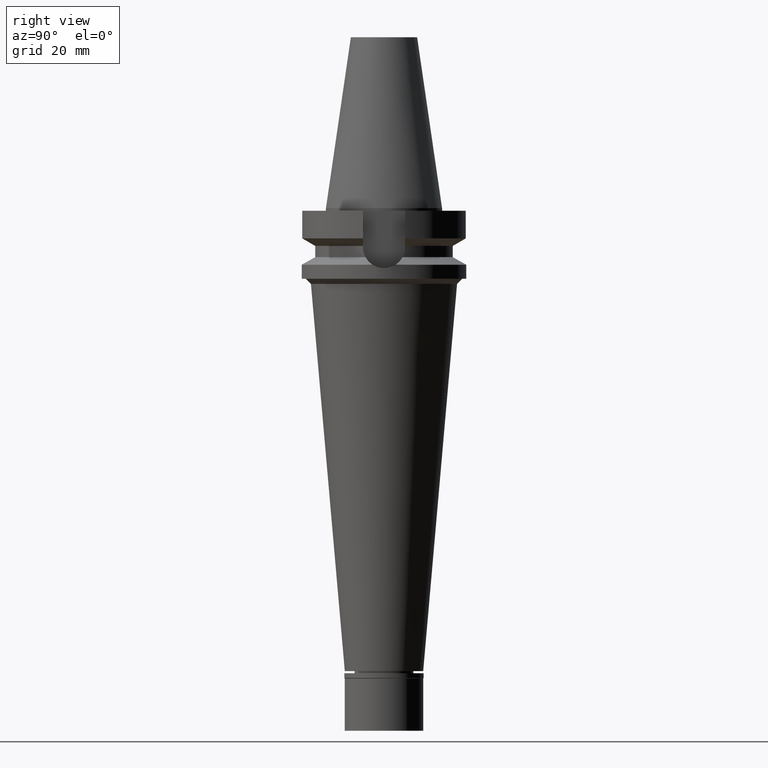
[diagram: clean part render]
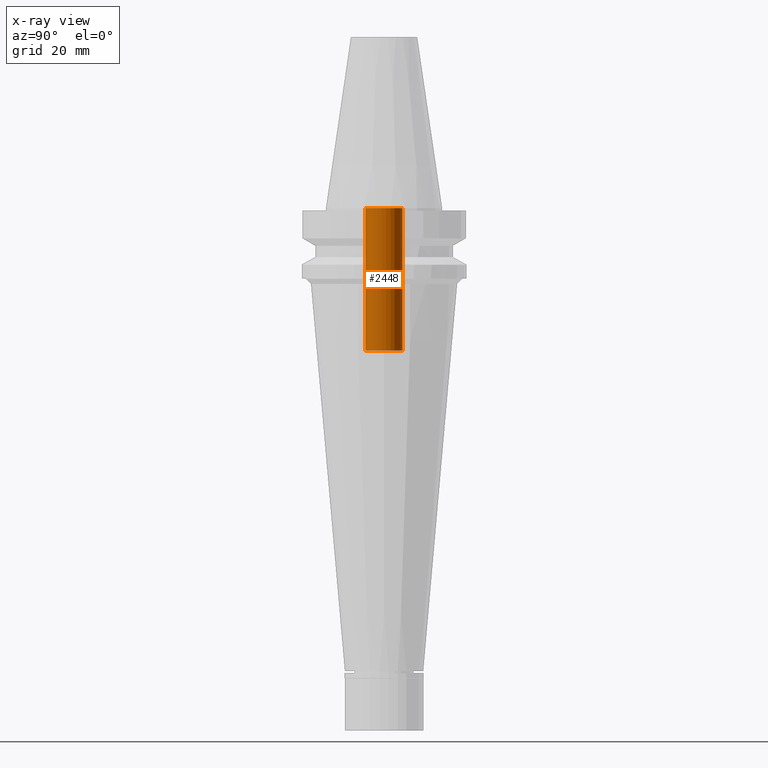
[diagram: x-ray — body ghosted, one internal face saturated and labeled with its STEP entity id]
A machine part, right view, then the same camera in x-ray: the body is ghosted and one INTERNAL B-rep face — a face not visible from any outside direction — is saturated and labeled: STEP entity #2448.
In plain terms, the highlighted cylindrical surface (edge-blend (fillet) strip) has radius 7.1 mm, axis along (0, 0, -1).
Its self-contained STEP definition (entity closure, byte-faithful):
#251 = CARTESIAN_POINT ( 'NONE',  ( 0.0000000000000000000, 7.100000000000000533, -54.60000000000000142 ) ) ;
#289 = EDGE_CURVE ( 'NONE', #820, #2198, #2969, .T. ) ;
#572 = FACE_OUTER_BOUND ( 'NONE', #1499, .T. ) ;
#628 = VERTEX_POINT ( 'NONE', #251 ) ;
#756 = LINE ( 'NONE', #1937, #1409 ) ;
#770 = DIRECTION ( 'NONE',  ( 0.0000000000000000000, 0.0000000000000000000, 1.000000000000000000 ) ) ;
#820 = VERTEX_POINT ( 'NONE', #2954 ) ;
#824 = DIRECTION ( 'NONE',  ( 0.0000000000000000000, -1.000000000000000000, 0.0000000000000000000 ) ) ;
#829 = EDGE_CURVE ( 'NONE', #2000, #820, #1750, .T. ) ;
#1198 = EDGE_CURVE ( 'NONE', #628, #2198, #756, .T. ) ;
#1311 = DIRECTION ( 'NONE',  ( 0.0000000000000000000, 0.0000000000000000000, 1.000000000000000000 ) ) ;
#1331 = ORIENTED_EDGE ( 'NONE', *, *, #289, .T. ) ;
#1409 = VECTOR ( 'NONE', #770, 1000.000000000000000 ) ;
#1490 = CARTESIAN_POINT ( 'NONE',  ( 0.0000000000000000000, -7.100000000000000533, -54.60000000000000142 ) ) ;
#1499 = EDGE_LOOP ( 'NONE', ( #1531, #2203, #1331, #2416 ) ) ;
#1531 = ORIENTED_EDGE ( 'NONE', *, *, #1943, .T. ) ;
#1609 = DIRECTION ( 'NONE',  ( 0.0000000000000000000, 1.000000000000000000, 0.0000000000000000000 ) ) ;
#1750 = LINE ( 'NONE', #1490, #2122 ) ;
#1801 = DIRECTION ( 'NONE',  ( 0.0000000000000000000, 0.0000000000000000000, -1.000000000000000000 ) ) ;
#1813 = AXIS2_PLACEMENT_3D ( 'NONE', #2526, #2247, #3010 ) ;
#1817 = CYLINDRICAL_SURFACE ( 'NONE', #2358, 7.100000000000000533 ) ;
#1882 = CARTESIAN_POINT ( 'NONE',  ( 0.0000000000000000000, 7.100000000000000533, -2.842170943039999687E-14 ) ) ;
#1937 = CARTESIAN_POINT ( 'NONE',  ( 0.0000000000000000000, 7.100000000000000533, -54.60000000000000142 ) ) ;
#1943 = EDGE_CURVE ( 'NONE', #628, #2000, #1960, .T. ) ;
#1960 = CIRCLE ( 'NONE', #2776, 7.100000000000000533 ) ;
#2000 = VERTEX_POINT ( 'NONE', #3068 ) ;
#2122 = VECTOR ( 'NONE', #1311, 1000.000000000000000 ) ;
#2198 = VERTEX_POINT ( 'NONE', #1882 ) ;
#2203 = ORIENTED_EDGE ( 'NONE', *, *, #829, .T. ) ;
#2247 = DIRECTION ( 'NONE',  ( 0.0000000000000000000, 0.0000000000000000000, 1.000000000000000000 ) ) ;
#2358 = AXIS2_PLACEMENT_3D ( 'NONE', #3035, #1801, #824 ) ;
#2416 = ORIENTED_EDGE ( 'NONE', *, *, #1198, .F. ) ;
#2448 = ADVANCED_FACE ( 'NONE', ( #572 ), #1817, .F. ) ;
#2526 = CARTESIAN_POINT ( 'NONE',  ( 0.0000000000000000000, 2.183973869259000036E-14, -2.842170943039999687E-14 ) ) ;
#2556 = CARTESIAN_POINT ( 'NONE',  ( 0.0000000000000000000, 2.183973869259000036E-14, -54.60000000000000142 ) ) ;
#2776 = AXIS2_PLACEMENT_3D ( 'NONE', #2556, #2814, #1609 ) ;
#2814 = DIRECTION ( 'NONE',  ( 0.0000000000000000000, 0.0000000000000000000, -1.000000000000000000 ) ) ;
#2954 = CARTESIAN_POINT ( 'NONE',  ( 0.0000000000000000000, -7.100000000000000533, -2.842170943039999687E-14 ) ) ;
#2969 = CIRCLE ( 'NONE', #1813, 7.100000000000000533 ) ;
#3010 = DIRECTION ( 'NONE',  ( 0.0000000000000000000, -1.000000000000000000, 0.0000000000000000000 ) ) ;
#3035 = CARTESIAN_POINT ( 'NONE',  ( 0.0000000000000000000, 2.183973869259000036E-14, 78.33500000000000796 ) ) ;
#3068 = CARTESIAN_POINT ( 'NONE',  ( 0.0000000000000000000, -7.100000000000000533, -54.60000000000000142 ) ) ;